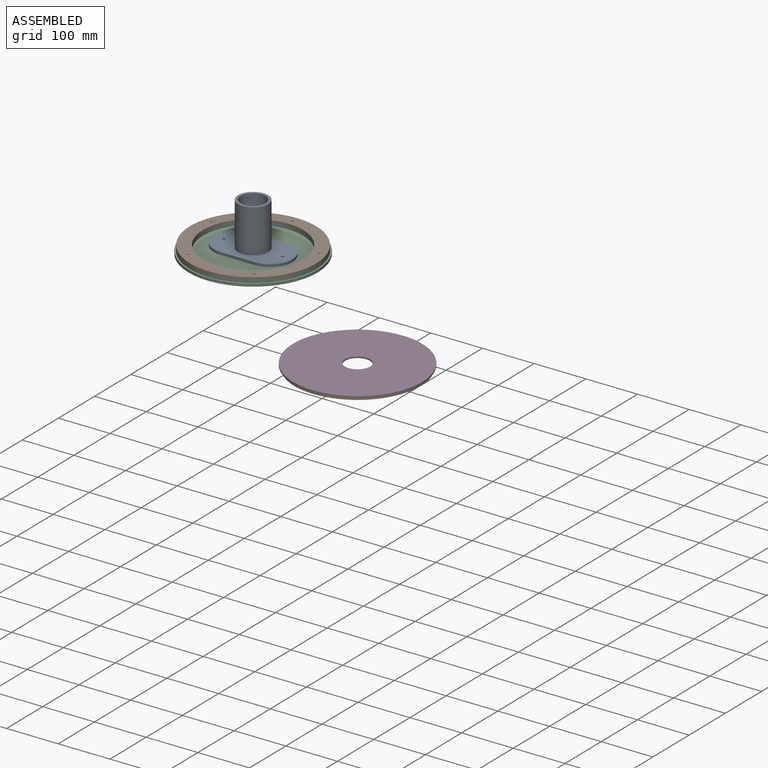
[diagram: assembled view]
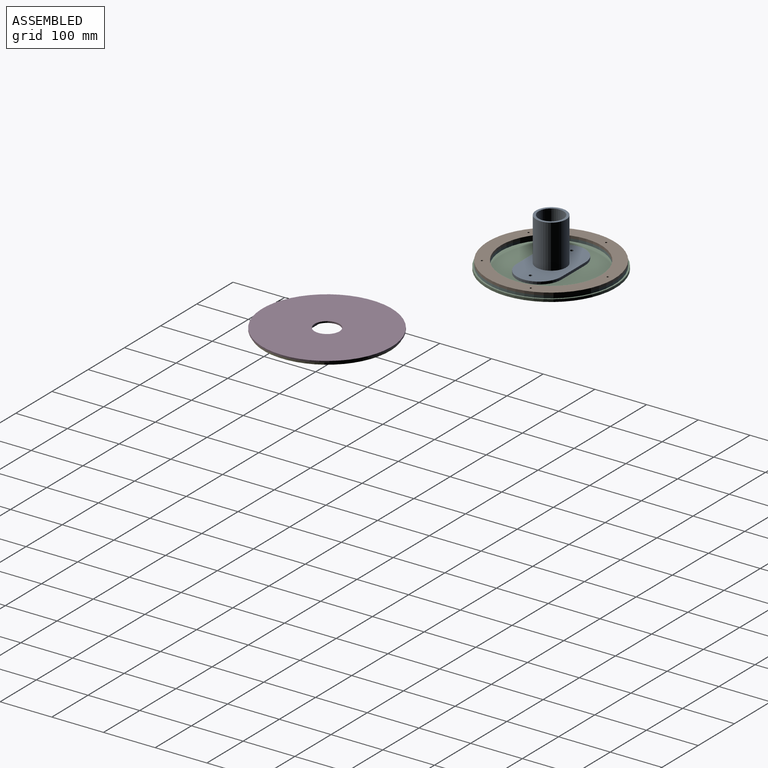
[diagram: assembled view, second angle]
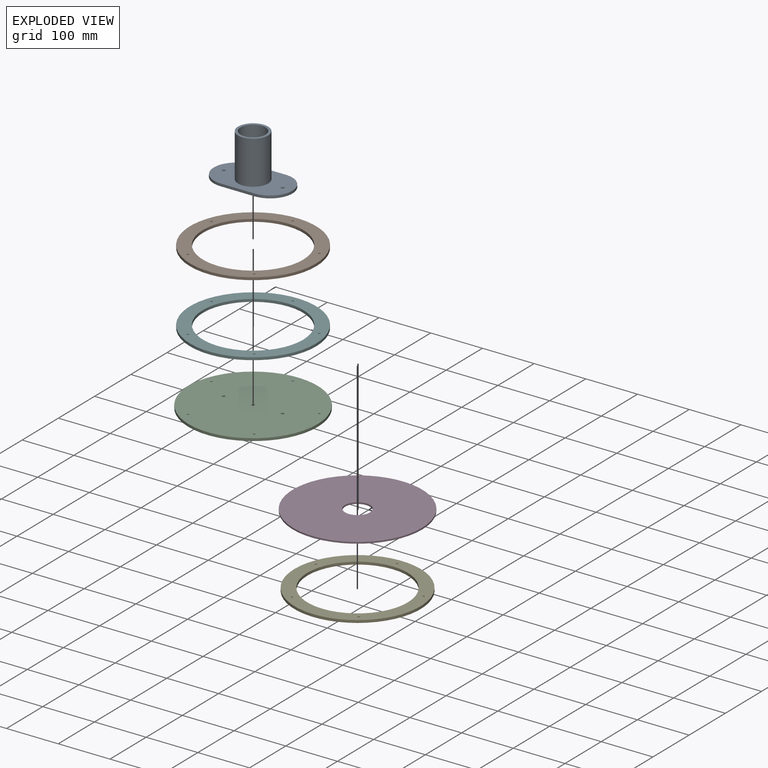
[diagram: exploded view]
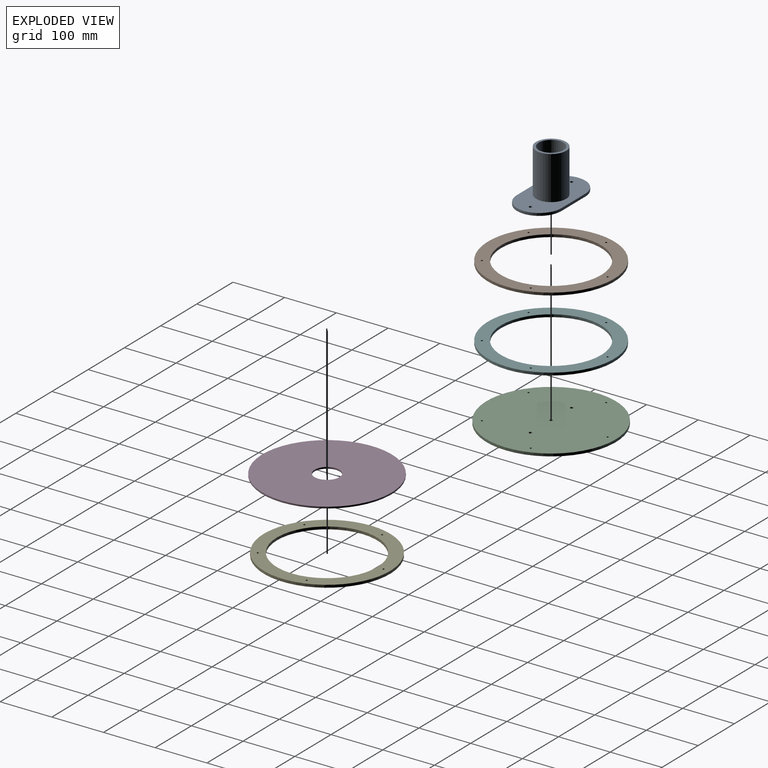
[diagram: exploded view, second angle]
ASSEMBLY  parts=6 mates=4
PART A: 12 faces, bbox 152x86x89 mm
  f0: plane 152x86mm, normal (0,0,1), area 8758.8mm2, adj f2,f3,f4,f5,f7,f10,f11
  f1: plane 152x86mm, normal (0,0,-1), area 11428.3mm2, adj f2,f3,f4,f5,f10,f11
  f2: plane 66x5mm, normal (0,1,0), area 330mm2, adj f0,f1,f3,f5
  f3: cylinder r=43mm len=86mm, axis (0,0,-1), area 675.4mm2, adj f0,f1,f2,f4
  f4: plane 66x5mm, normal (0,-1,0), area 330mm2, adj f0,f1,f3,f5
  f5: cylinder r=43mm len=86mm, axis (0,0,-1), area 675.4mm2, adj f0,f1,f2,f4
  f6: cylinder r=24.15mm len=84mm, axis (0,0,-1), area 12746.1mm2, adj f8,f9
  f7: cylinder r=29.15mm len=84mm, axis (0,0,-1), area 15385mm2, adj f0,f8
  f8: plane 58.3x58.3mm, normal (0,0,1), area 837.2mm2, adj f6,f7
  f9: plane 48.3x48.3mm, normal (0,0,1), area 1832.2mm2, adj f6
  f10: cylinder r=3mm len=6mm, axis (0,0,1), area 94.2mm2, adj f0,f1
  f11: cylinder r=3mm len=6mm, axis (0,0,1), area 94.2mm2, adj f0,f1
PART B: 9 faces, bbox 244x244x5 mm
  f0: cylinder r=97mm len=194mm, axis (0,0,-1), area 3047.3mm2, adj f2,f3
  f1: cylinder r=122mm len=244mm, axis (0,0,-1), area 3832.7mm2, adj f2,f3
  f2: plane 244x244mm, normal (0,0,1), area 17137.4mm2, adj f0,f1,f4,f5,f6,f7,f8
  f3: plane 244x244mm, normal (0,0,-1), area 17137.4mm2, adj f0,f1,f4,f5,f6,f7,f8
  f4: cylinder r=2mm len=5mm, axis (0,0,1), area 62.8mm2, adj f2,f3
  f5: cylinder r=2mm len=5mm, axis (0,0,1), area 62.8mm2, adj f2,f3
  f6: cylinder r=2mm len=5mm, axis (0,0,1), area 62.8mm2, adj f2,f3
  f7: cylinder r=2mm len=5mm, axis (0,0,1), area 62.8mm2, adj f2,f3
  f8: cylinder r=2mm len=5mm, axis (0,0,1), area 62.8mm2, adj f2,f3
PART C: 11 faces, bbox 250x250x5 mm
  f0: cylinder r=125mm len=250mm, axis (0,0,-1), area 3927mm2, adj f1,f2
  f1: plane 250x250mm, normal (0,0,1), area 48939.7mm2, adj f0,f3,f4,f5,f6,f7,f8,f9
  f2: plane 250x250mm, normal (0,0,-1), area 48939.7mm2, adj f0,f3,f4,f5,f6,f7,f8,f9
  f3: cylinder r=3mm len=6mm, axis (0,0,1), area 94.2mm2, adj f1,f2
  f4: cylinder r=3mm len=6mm, axis (0,0,1), area 94.2mm2, adj f1,f2
  f5: cylinder r=3mm len=6mm, axis (0,0,1), area 94.2mm2, adj f1,f2
  f6: cylinder r=2mm len=5mm, axis (0,0,1), area 62.8mm2, adj f1,f2
  f7: cylinder r=2mm len=5mm, axis (0,0,1), area 62.8mm2, adj f1,f2
  f8: cylinder r=2mm len=5mm, axis (0,0,1), area 62.8mm2, adj f1,f2
  f9: cylinder r=2mm len=5mm, axis (0,0,1), area 62.8mm2, adj f1,f2
  f10: cylinder r=2mm len=5mm, axis (0,0,1), area 62.8mm2, adj f1,f2
PART D: 4 faces, bbox 250x250x3 mm
  f0: cylinder r=125mm len=250mm, axis (0,0,-1), area 2356.2mm2, adj f1,f2
  f1: plane 250x250mm, normal (0,0,1), area 47255.1mm2, adj f0,f3
  f2: plane 250x250mm, normal (0,0,-1), area 47255.1mm2, adj f0,f3
  f3: cylinder r=24.15mm len=48.3mm, axis (0,0,1), area 455.2mm2, adj f1,f2
PART E: same geometry as B
PART F: same geometry as B
PLACE A t=(-18.92,-14.03,2.05)mm
PLACE B t=(33.38,18.97,7.05)mm
PLACE C t=(33.38,18.97,-2.95)mm
PLACE D t=(372.59,-176.94,-31.78)mm
PLACE E rot(axis=(0,1,0),180deg) t=(372.59,-176.94,-31.78)mm
PLACE F t=(33.38,18.97,2.05)mm
MATE fastened A.f6 <-> C.f0  axis (0,0,-1) through (33.38,18.97,2.05)mm
MATE fastened E.f0 <-> D.f0  axis (0,0,1) through (372.59,-176.94,-31.78)mm
MATE fastened F.f1 <-> C.f0  axis (0,0,-1) through (33.38,18.97,2.05)mm
MATE fastened B.f1 <-> F.f1  axis (0,0,-1) through (33.38,18.97,7.05)mm
